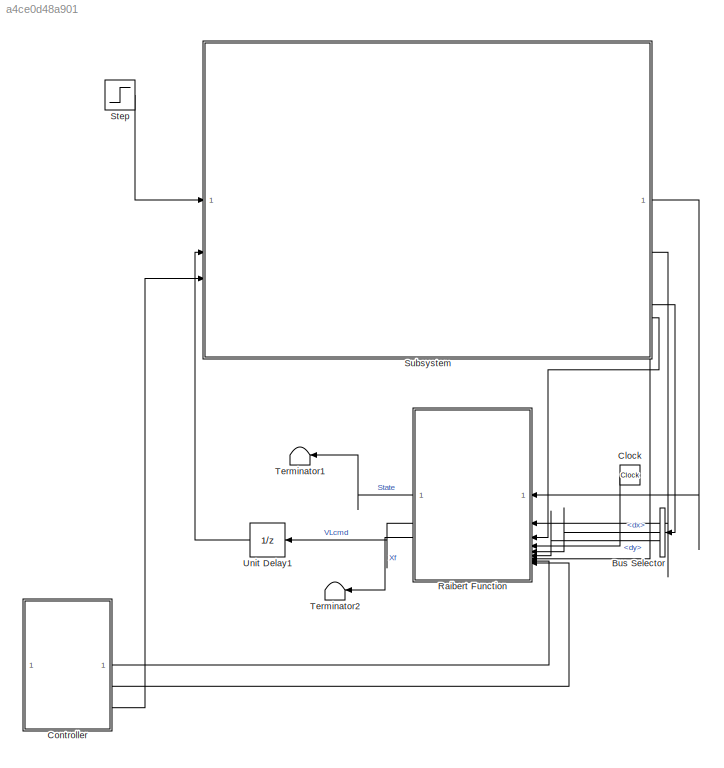
MODEL slx_a4ce0d48a901
KIND model
CONFIG AbsTol = auto
CONFIG EnableMultiTasking = off
CONFIG FixedStep = auto
CONFIG MaxStep = auto
CONFIG MinStep = auto
CONFIG RelTol = 1e-3
CONFIG SampleTimeConstraint = Unconstrained
CONFIG SolverName = FixedStepAuto
CONFIG StartTime = 0.0
CONFIG StopTime = inf
BLOCK [BusSelector] Bus Selector
  OutputSignals = dx,dy
BLOCK [Clock] Clock
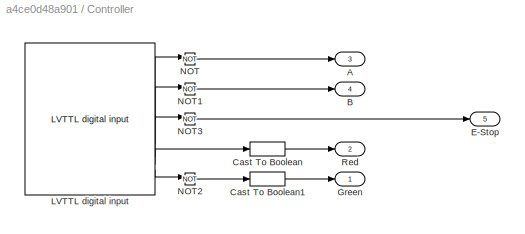
BLOCK [SubSystem] Controller
  AncestorBlock = aru_toolbox/Controller
BLOCK [Outport] Controller/A
  Port = 3
BLOCK [Outport] Controller/B
  Port = 4
BLOCK [DataTypeConversion] Controller/Cast To Boolean
  OutDataTypeStr = boolean
  RndMeth = Floor
  SaturateOnIntegerOverflow = off
BLOCK [DataTypeConversion] Controller/Cast To Boolean1
  OutDataTypeStr = boolean
  RndMeth = Floor
  SaturateOnIntegerOverflow = off
BLOCK [Outport] Controller/E-Stop
  Port = 5
BLOCK [Outport] Controller/Green
BLOCK [Reference] Controller/LVTTL digital input   REF=speedgoatlib_IO291/LVTTL digital input 
  SourceBlock = speedgoatlib_IO291/LVTTL digital input
  SourceProductName = IO291
  SourceType = di_ttl_IO291
BLOCK [Logic] Controller/NOT
  AllPortsSameDT = off
  IconShape = distinctive
  Operator = NOT
  OutDataTypeStr = boolean
BLOCK [Logic] Controller/NOT1
  AllPortsSameDT = off
  IconShape = distinctive
  Operator = NOT
  OutDataTypeStr = boolean
BLOCK [Logic] Controller/NOT2
  AllPortsSameDT = off
  IconShape = distinctive
  Operator = NOT
  OutDataTypeStr = boolean
BLOCK [Logic] Controller/NOT3
  AllPortsSameDT = off
  IconShape = distinctive
  Operator = NOT
  OutDataTypeStr = boolean
BLOCK [Outport] Controller/Red
  Port = 2
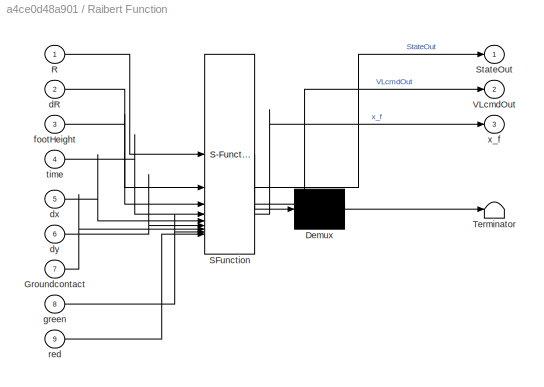
BLOCK [SubSystem] Raibert Function
  ErrorFcn = Stateflow.Translate.translate
  PermitHierarchicalResolution = ExplicitOnly
  SFBlockType = MATLAB Function
  TreatAsAtomicUnit = on
BLOCK [Demux] Raibert Function/ Demux 
  Outputs = 1
BLOCK [S-Function] Raibert Function/ SFunction 
  EnableBusSupport = off
  FunctionName = sf_sfun
  PortCounts = [9 4]
  SFcnIsStateOwnerBlock = off
  SFunctionDeploymentMode = off
  Tag = Stateflow S-Function 1
BLOCK [Terminator] Raibert Function/ Terminator 
BLOCK [Inport] Raibert Function/Groundcontact
  Port = 7
BLOCK [Inport] Raibert Function/R
BLOCK [Outport] Raibert Function/StateOut
BLOCK [Outport] Raibert Function/VLcmdOut
  Port = 2
BLOCK [Inport] Raibert Function/dR
  Port = 2
BLOCK [Inport] Raibert Function/dx
  Port = 5
BLOCK [Inport] Raibert Function/dy
  Port = 6
BLOCK [Inport] Raibert Function/footHeight
  Port = 3
BLOCK [Inport] Raibert Function/green
  Port = 8
BLOCK [Inport] Raibert Function/red
  Port = 9
BLOCK [Inport] Raibert Function/time
  Port = 4
BLOCK [Outport] Raibert Function/x_f
  Port = 3
BLOCK [Step] Step
  SampleTime = 0
  Time = 5
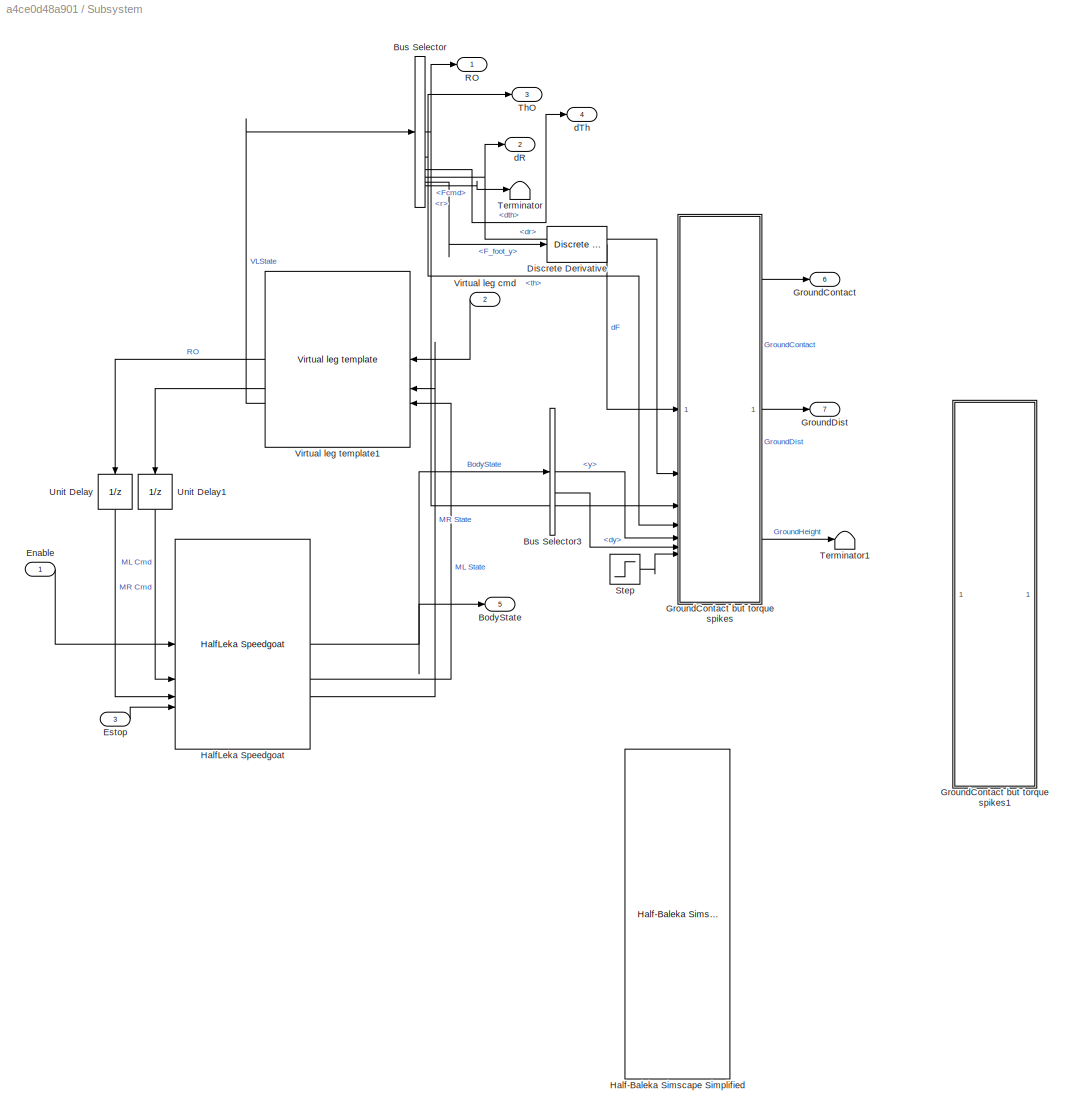
BLOCK [SubSystem] Subsystem
BLOCK [Outport] Subsystem/BodyState
  Port = 5
BLOCK [BusSelector] Subsystem/Bus Selector
  OutputSignals = r,th,dth,dr,F_foot_y,Fcmd
BLOCK [BusSelector] Subsystem/Bus Selector3
  OutputSignals = y,dy
BLOCK [Reference] Subsystem/Discrete Derivative  REF=simulink/Discrete/Discrete Derivative
  SourceBlock = simulink/Discrete/Discrete Derivative
  SourceType = Discrete Derivative
BLOCK [Inport] Subsystem/Enable
BLOCK [Inport] Subsystem/Estop
  Port = 3
BLOCK [Outport] Subsystem/GroundContact
  Port = 6
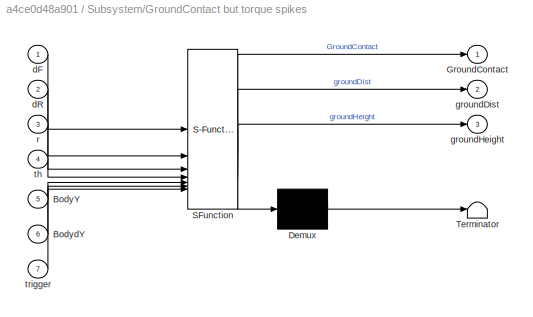
BLOCK [SubSystem] Subsystem/GroundContact but torque spikes
  ErrorFcn = Stateflow.Translate.translate
  PermitHierarchicalResolution = ExplicitOnly
  SFBlockType = MATLAB Function
  TreatAsAtomicUnit = on
BLOCK [Demux] Subsystem/GroundContact but torque spikes/ Demux 
  Outputs = 1
BLOCK [S-Function] Subsystem/GroundContact but torque spikes/ SFunction 
  EnableBusSupport = off
  FunctionName = sf_sfun
  PortCounts = [7 4]
  SFcnIsStateOwnerBlock = off
  SFunctionDeploymentMode = off
  Tag = Stateflow S-Function 2
BLOCK [Terminator] Subsystem/GroundContact but torque spikes/ Terminator 
BLOCK [Inport] Subsystem/GroundContact but torque spikes/BodyY
  Port = 5
BLOCK [Inport] Subsystem/GroundContact but torque spikes/BodydY
  Port = 6
BLOCK [Outport] Subsystem/GroundContact but torque spikes/GroundContact
BLOCK [Inport] Subsystem/GroundContact but torque spikes/dF
BLOCK [Inport] Subsystem/GroundContact but torque spikes/dR
  Port = 2
BLOCK [Outport] Subsystem/GroundContact but torque spikes/groundDist
  Port = 2
BLOCK [Outport] Subsystem/GroundContact but torque spikes/groundHeight
  Port = 3
BLOCK [Inport] Subsystem/GroundContact but torque spikes/r
  Port = 3
BLOCK [Inport] Subsystem/GroundContact but torque spikes/th
  Port = 4
BLOCK [Inport] Subsystem/GroundContact but torque spikes/trigger
  Port = 7
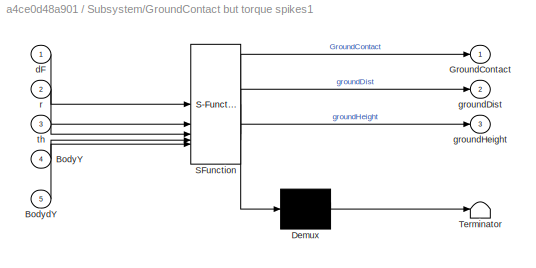
BLOCK [SubSystem] Subsystem/GroundContact but torque spikes1
  Commented = on
  ErrorFcn = Stateflow.Translate.translate
  PermitHierarchicalResolution = ExplicitOnly
  SFBlockType = MATLAB Function
  TreatAsAtomicUnit = on
BLOCK [Demux] Subsystem/GroundContact but torque spikes1/ Demux 
  Outputs = 1
BLOCK [S-Function] Subsystem/GroundContact but torque spikes1/ SFunction 
  EnableBusSupport = off
  FunctionName = sf_sfun
  PortCounts = [5 4]
  SFcnIsStateOwnerBlock = off
  SFunctionDeploymentMode = off
  Tag = Stateflow S-Function 3
BLOCK [Terminator] Subsystem/GroundContact but torque spikes1/ Terminator 
BLOCK [Inport] Subsystem/GroundContact but torque spikes1/BodyY
  Port = 4
BLOCK [Inport] Subsystem/GroundContact but torque spikes1/BodydY
  Port = 5
BLOCK [Outport] Subsystem/GroundContact but torque spikes1/GroundContact
BLOCK [Inport] Subsystem/GroundContact but torque spikes1/dF
BLOCK [Outport] Subsystem/GroundContact but torque spikes1/groundDist
  Port = 2
BLOCK [Outport] Subsystem/GroundContact but torque spikes1/groundHeight
  Port = 3
BLOCK [Inport] Subsystem/GroundContact but torque spikes1/r
  Port = 2
BLOCK [Inport] Subsystem/GroundContact but torque spikes1/th
  Port = 3
BLOCK [Outport] Subsystem/GroundDist
  Port = 7
BLOCK [Reference] Subsystem/Half-Baleka Simscape Simplified  REF=aru_toolbox/Baleka 2.5/Half-Baleka Simscape Simplified
  Commented = on
  SourceBlock = aru_toolbox/Baleka 2.5/Half-Baleka Simscape Simplified
  SourceProductName = ARU Toolbox
  SourceType = Simulation model
BLOCK [Reference] Subsystem/HalfLeka Speedgoat  REF=aru_toolbox/Baleka 2.5/HalfLeka Speedgoat
  SourceBlock = aru_toolbox/Baleka 2.5/HalfLeka Speedgoat
BLOCK [Outport] Subsystem/RO
BLOCK [Step] Subsystem/Step
  SampleTime = 0
  Time = 8
BLOCK [Terminator] Subsystem/Terminator
BLOCK [Terminator] Subsystem/Terminator1
BLOCK [Outport] Subsystem/ThO
  Port = 3
BLOCK [UnitDelay] Subsystem/Unit Delay
  HasFrameUpgradeWarning = on
  NameLocation = left
  SampleTime = -1
BLOCK [UnitDelay] Subsystem/Unit Delay1
  HasFrameUpgradeWarning = on
  NameLocation = left
  SampleTime = -1
BLOCK [Inport] Subsystem/Virtual leg cmd
  NameLocation = top
  OutDataTypeStr = Bus: VLcmd
  Port = 2
BLOCK [Reference] Subsystem/Virtual leg template1  REF=aru_toolbox/Baleka 2.5/Virtual leg template
  SourceBlock = aru_toolbox/Baleka 2.5/Virtual leg template
  SourceProductName = ARU Toolbox
BLOCK [Outport] Subsystem/dR
  Port = 2
BLOCK [Outport] Subsystem/dTh
  Port = 4
BLOCK [Terminator] Terminator1
BLOCK [Terminator] Terminator2
BLOCK [UnitDelay] Unit Delay1
  HasFrameUpgradeWarning = on
  SampleTime = -1
LINE Bus Selector:1 -> Raibert Function:5
LINE Bus Selector:2 -> Raibert Function:6
LINE Clock:1 -> Raibert Function:4
LINE Controller:1 -> Raibert Function:8
LINE Controller:2 -> Raibert Function:9
LINE Controller:5 -> Subsystem:3
LINE Raibert Function:1 -> Terminator1:1
LINE Raibert Function:2 -> Unit Delay1:1
LINE Raibert Function:3 -> Terminator2:1
LINE Step:1 -> Subsystem:1
LINE Subsystem/Bus Selector3:1 -> Subsystem/GroundContact but torque spikes:5
LINE Subsystem/Bus Selector3:2 -> Subsystem/GroundContact but torque spikes:6
NET Subsystem/Bus Selector:1 -> Subsystem/GroundContact but torque spikes:3, Subsystem/RO:1
NET Subsystem/Bus Selector:2 -> Subsystem/GroundContact but torque spikes:4, Subsystem/ThO:1
LINE Subsystem/Bus Selector:3 -> Subsystem/dTh:1
NET Subsystem/Bus Selector:4 -> Subsystem/GroundContact but torque spikes:2, Subsystem/dR:1
LINE Subsystem/Bus Selector:5 -> Subsystem/Discrete Derivative:1
LINE Subsystem/Bus Selector:6 -> Subsystem/Terminator:1
LINE Subsystem/Discrete Derivative:1 -> Subsystem/GroundContact but torque spikes:1
LINE Subsystem/Enable:1 -> Subsystem/HalfLeka Speedgoat:1
LINE Subsystem/Estop:1 -> Subsystem/HalfLeka Speedgoat:4
LINE Subsystem/GroundContact but torque spikes:1 -> Subsystem/GroundContact:1
LINE Subsystem/GroundContact but torque spikes:2 -> Subsystem/GroundDist:1
LINE Subsystem/GroundContact but torque spikes:3 -> Subsystem/Terminator1:1
NET Subsystem/HalfLeka Speedgoat:1 -> Subsystem/BodyState:1, Subsystem/Bus Selector3:1
LINE Subsystem/HalfLeka Speedgoat:2 -> Subsystem/Virtual leg template1:3
LINE Subsystem/HalfLeka Speedgoat:3 -> Subsystem/Virtual leg template1:2
LINE Subsystem/Step:1 -> Subsystem/GroundContact but torque spikes:7
LINE Subsystem/Unit Delay1:1 -> Subsystem/HalfLeka Speedgoat:2
LINE Subsystem/Unit Delay:1 -> Subsystem/HalfLeka Speedgoat:3
LINE Subsystem/Virtual leg cmd:1 -> Subsystem/Virtual leg template1:1
LINE Subsystem/Virtual leg template1:1 -> Subsystem/Unit Delay:1
LINE Subsystem/Virtual leg template1:2 -> Subsystem/Unit Delay1:1
LINE Subsystem/Virtual leg template1:3 -> Subsystem/Bus Selector:1
LINE Subsystem:1 -> Raibert Function:1
LINE Subsystem:2 -> Raibert Function:2
LINE Subsystem:5 -> Bus Selector:1
LINE Subsystem:6 -> Raibert Function:7
LINE Subsystem:7 -> Raibert Function:3
LINE Unit Delay1:1 -> Subsystem:2
note: NET lines group one-source signal fan-out (src -> all destinations, sorted); 1:1 wires keep LINE
CHART Raibert Function states=1 transitions=1
  STATE_LABEL 'eML_blk_kernel()'
  STATE_LABEL 'SCRIPT:\nfunction [StateOut, VLcmdOut, x_f]   = Raibert(R, dR,footHeight, time,dx, dy, Groundcontact, green, red)\n    % Raibert hopping state machine\n    persistent state landTime VLcmd x_f_des %dR\n    % State variable\n    % 0 = SETUP\n    % 1 = FLIGHT\n    % 2 = COMPRESSION\n    % 3 = THRUST\n    \n    % Params:\n    Ts = 0.25;\n    Kdx = -0.01;\n    dx_d = 2;\n\n\n    x_f = dx*Ts/2 + Kdx*(dx - dx_d); % Foot...<+3608ch>'
CHART Subsystem/GroundContact but torque spikes states=1 transitions=1
  STATE_LABEL 'eML_blk_kernel()'
  STATE_LABEL 'SCRIPT:\nfunction [GroundContact, groundDist, groundHeight]  = ImpactTorque(dF, dR, r, th, BodyY, BodydY, trigger)\n        % need to see how IRL torque spikes work, but we can do a veeery\n        % rough guestimate here:\n        persistent GroundContactpers;\n        persistent GroundHeight;\n        if isempty(GroundContactpers)\n            GroundContactpers = true;\n            GroundHeight = 0;\n   ...<+898ch>'
CHART Subsystem/GroundContact but torque spikes1 states=1 transitions=1
  STATE_LABEL 'eML_blk_kernel()'
  STATE_LABEL 'SCRIPT:\nfunction [GroundContact, groundDist, groundHeight]  = ImpactTorque(dF,r, th, BodyY, BodydY)\n        % need to see how IRL torque spikes work, but we can do a veeery\n        % rough guestimate here:\n        persistent GroundContactpers;\n        persistent GroundHeight;\n        if isempty(GroundContactpers)\n            GroundContactpers = true;\n            GroundHeight = 0;\n        end\n\n    ...<+564ch>'
CHART  states=0 transitions=0
CHART  states=0 transitions=0
CHART  states=0 transitions=0
